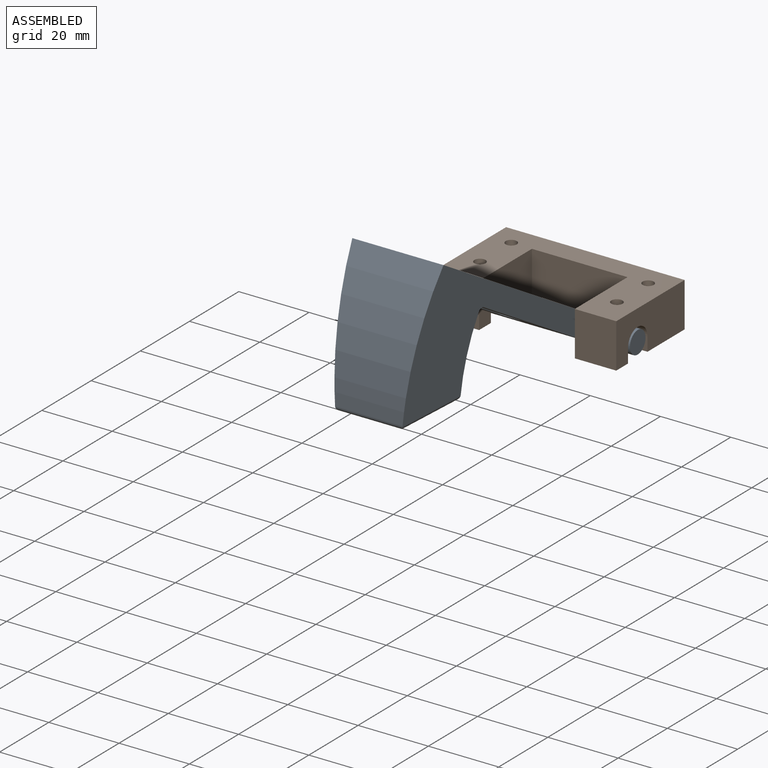
[diagram: assembled view]
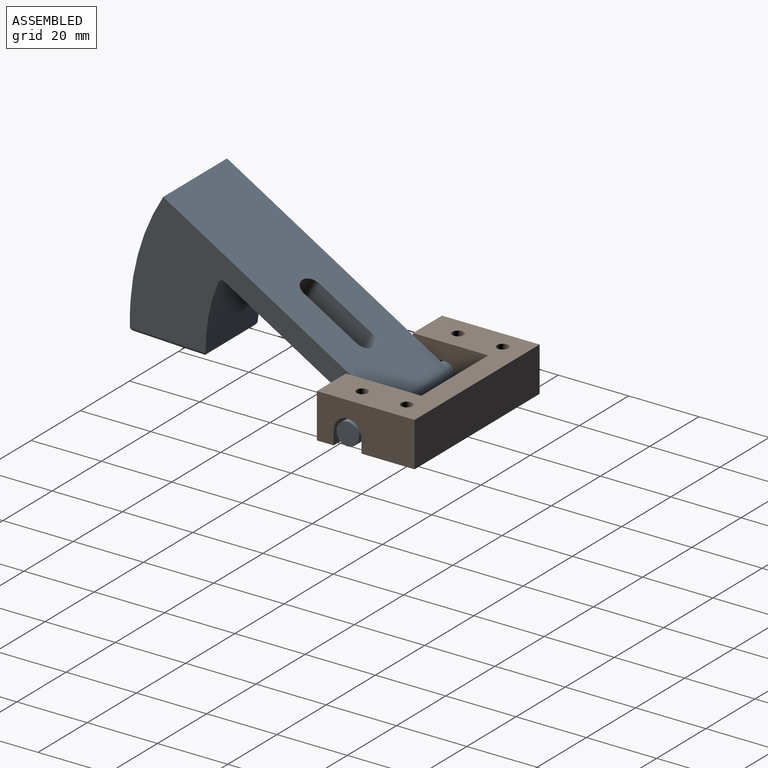
[diagram: assembled view, second angle]
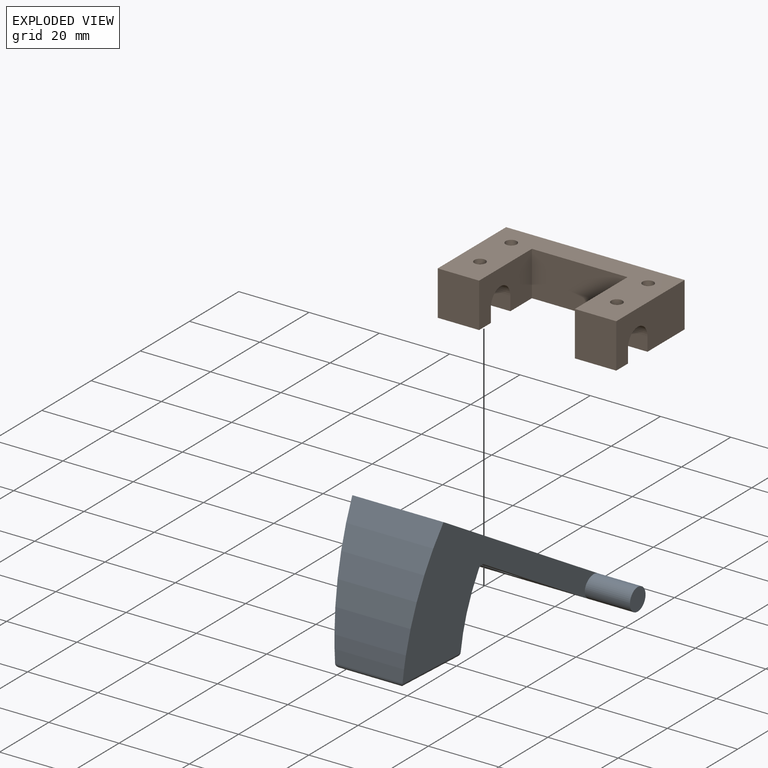
[diagram: exploded view]
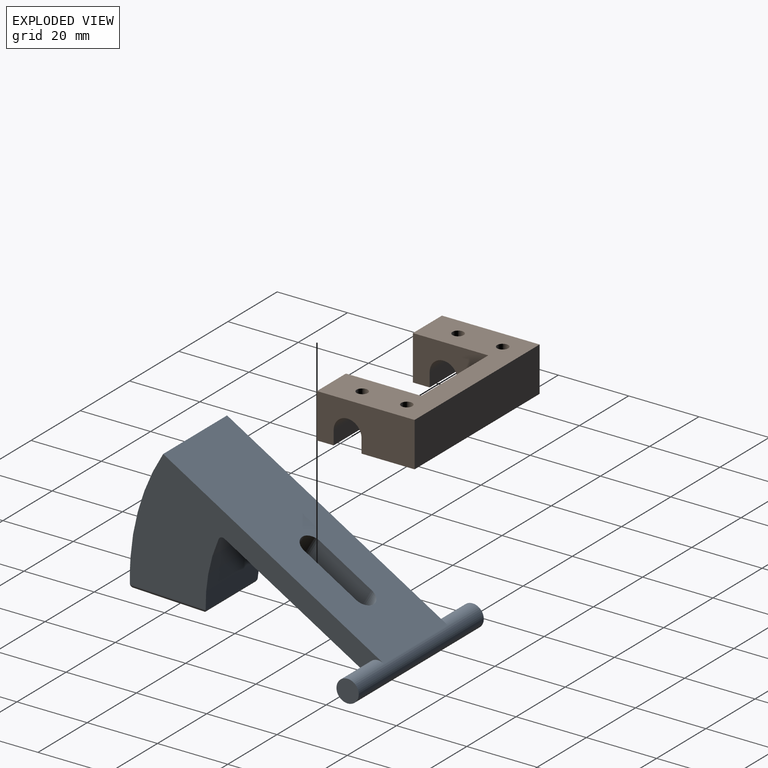
[diagram: exploded view, second angle]
ASSEMBLY  parts=2 mates=2
PART A: 19 faces, bbox 39.7x50.8x76.2 mm
  f0: plane 72.96x25.96mm, normal (1,0,0), area 1751.4mm2, adj f2,f5,f6,f7,f10,f11,f12,f13
  f1: plane 49.33x24.84mm, normal (-1,0,0), area 1083.4mm2, adj f2,f6,f7,f10,f11,f12,f13,f14
  f2: cylinder r=3.17mm len=50.8mm, axis (0,1,0), area 760.1mm2, adj f0,f1,f6,f7,f8,f9
  f3: cylinder r=50.8mm len=24.6mm, axis (0,1,0), area 474.9mm2, adj f6,f7,f14,f18
  f4: plane 18.49x17.05mm, normal (-0.87,0,0.5), area 347.1mm2, adj f15,f16,f17,f18
  f5: cylinder r=73.03mm len=38.56mm, axis (0,1,0), area 903mm2, adj f0,f6,f7,f15
  f6: plane 73.03x38.66mm, normal (-0.09,-1,0), area 1076mm2, adj f0,f1,f2,f3,f5,f14,f15,f16
  f7: plane 73.03x38.66mm, normal (-0.09,1,0), area 1076mm2, adj f0,f1,f2,f3,f5,f14,f15,f17
  f8: plane 6.35x6.35mm, normal (0,1,0), area 31.7mm2, adj f2
  f9: plane 6.35x6.35mm, normal (0,-1,0), area 31.7mm2, adj f2
  f10: plane 17.15x6.35mm, normal (0,1,0), area 108.9mm2, adj f0,f1,f11,f13
  f11: cylinder r=3.21mm len=6.41mm, axis (-1,0,0), area 64mm2, adj f0,f1,f10,f12
  f12: plane 17.15x6.35mm, normal (0,-1,0), area 108.9mm2, adj f0,f1,f11,f13
  f13: cylinder r=3.21mm len=6.41mm, axis (-1,0,0), area 64mm2, adj f0,f1,f10,f12
  f14: cylinder r=1.27mm len=24.84mm, axis (0,1,0), area 52.2mm2, adj f1,f3,f6,f7
  f15: cylinder r=1.27mm len=19.21mm, axis (0,1,0), area 37mm2, adj f4,f5,f6,f7,f16,f17
  f16: cylinder r=1.27mm len=19.88mm, axis (0.5,-0.04,0.87), area 40.4mm2, adj f4,f6,f15,f18
  f17: cylinder r=1.27mm len=19.88mm, axis (0.5,0.04,0.87), area 40.4mm2, adj f4,f7,f15,f18
  f18: cylinder r=1.27mm len=21.14mm, axis (0,1,0), area 39.6mm2, adj f3,f4,f6,f7,f16,f17
PART B: 22 faces, bbox 50.8x27.8x12.7 mm
  f0: plane 27.78x12.7mm, normal (1,0,0), area 296.6mm2, adj f2,f3,f8,f11,f12,f13,f14,f20
  f1: plane 11.79x4.76mm, normal (0,0,-1), area 56.1mm2, adj f4,f5,f7,f21
  f2: plane 50.8x27.78mm, normal (0,0,1), area 796.1mm2, adj f0,f4,f5,f6,f14,f15,f16,f17
  f3: plane 11.79x4.76mm, normal (0,0,-1), area 56.1mm2, adj f0,f6,f12,f20
  f4: plane 27.78x12.7mm, normal (-1,0,0), area 296.6mm2, adj f1,f2,f7,f9,f10,f11,f14,f21
  f5: plane 21.43x12.7mm, normal (1,0,0), area 215.9mm2, adj f1,f2,f7,f9,f10,f11,f16,f21
  f6: plane 21.43x12.7mm, normal (-1,0,0), area 215.9mm2, adj f2,f3,f8,f11,f12,f13,f16,f20
  f7: plane 11.79x3.97mm, normal (0,1,0), area 46.8mm2, adj f1,f4,f5,f9
  f8: cylinder r=3.97mm len=11.79mm, axis (-1,0,0), area 138.9mm2, adj f0,f6,f12,f13,f17
  f9: cylinder r=3.97mm len=11.79mm, axis (-1,0,0), area 138.9mm2, adj f4,f5,f7,f10,f19
  f10: plane 11.79x3.97mm, normal (0,-1,0), area 46.8mm2, adj f4,f5,f9,f11
  f11: plane 50.8x15.08mm, normal (0,0,-1), area 512.6mm2, adj f0,f4,f5,f6,f10,f13,f14,f15
  f12: plane 11.79x3.97mm, normal (0,1,0), area 46.8mm2, adj f0,f3,f6,f8
  f13: plane 11.79x3.97mm, normal (0,-1,0), area 46.8mm2, adj f0,f6,f8,f11
  f14: plane 50.8x12.7mm, normal (0,1,0), area 645.2mm2, adj f0,f2,f4,f11
  f15: cylinder r=1.59mm len=12.7mm, axis (0,0,1), area 126.7mm2, adj f2,f11
  f16: plane 27.23x12.7mm, normal (0,-1,0), area 345.8mm2, adj f2,f5,f6,f11
  f17: cylinder r=1.59mm len=5.09mm, axis (0,0,1), area 49.1mm2, adj f2,f8
  f18: cylinder r=1.59mm len=12.7mm, axis (0,0,1), area 126.7mm2, adj f2,f11
  f19: cylinder r=1.59mm len=5.09mm, axis (0,0,1), area 49.1mm2, adj f2,f9
  f20: plane 12.7x11.79mm, normal (0,-1,0), area 149.7mm2, adj f0,f2,f3,f6
  f21: plane 12.7x11.79mm, normal (0,-1,0), area 149.7mm2, adj f1,f2,f4,f5
PLACE A rot(axis=(-0.66,-0.66,-0.37),139deg) t=(-45.88,25.77,-50.8)mm
PLACE B t=(-45.88,6.72,-54.77)mm fixed
MATE planar A.f2 <-> B.f0  axis (1,0,0) through (-20.48,25.77,-50.8)mm
MATE cylindrical A.f2 <-> B.f8  axis (1,0,0) through (-45.88,25.77,-50.8)mm
